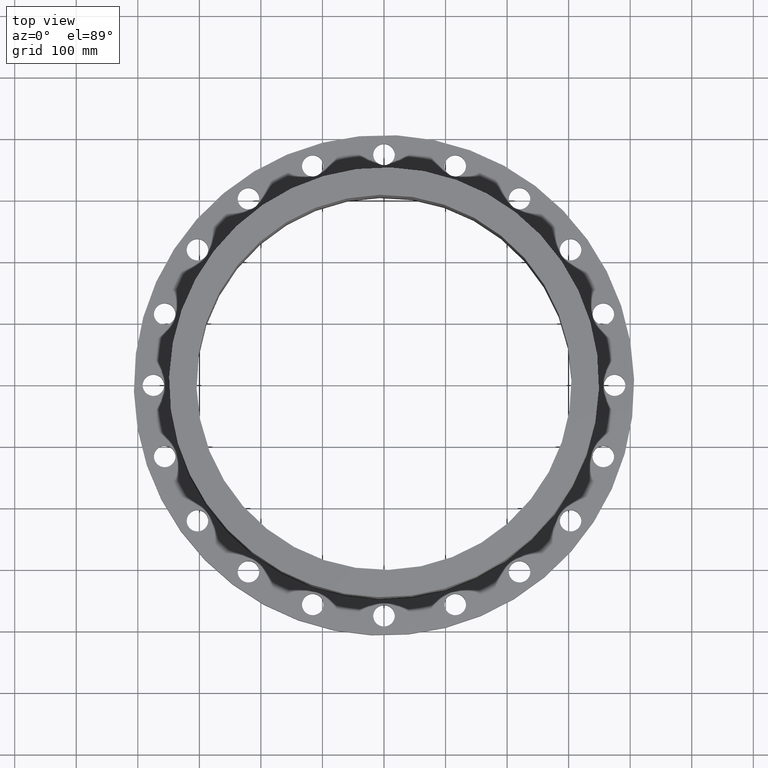
[diagram: clean part render]
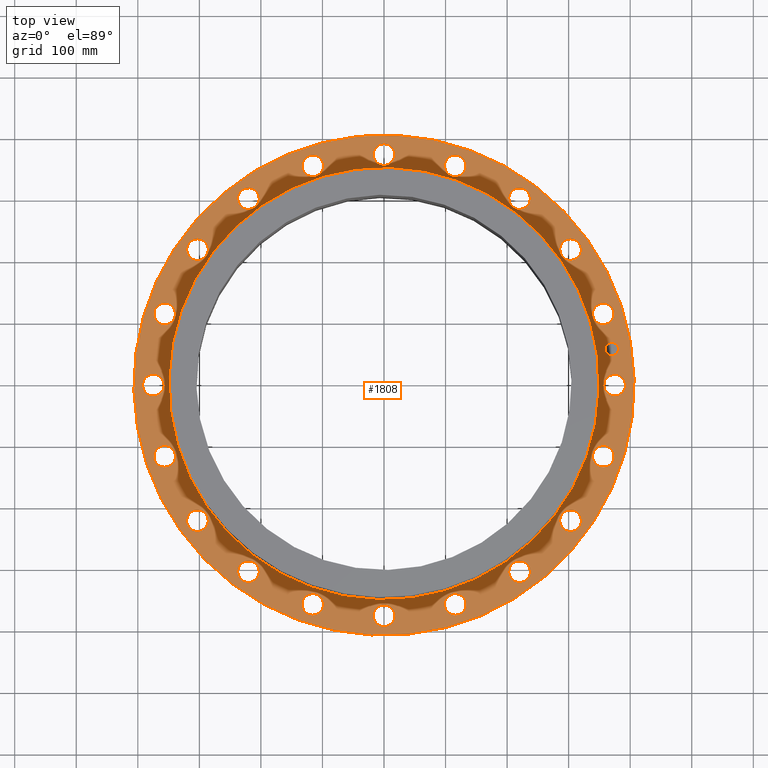
[diagram: same view with one face highlighted and labeled with its STEP entity id]
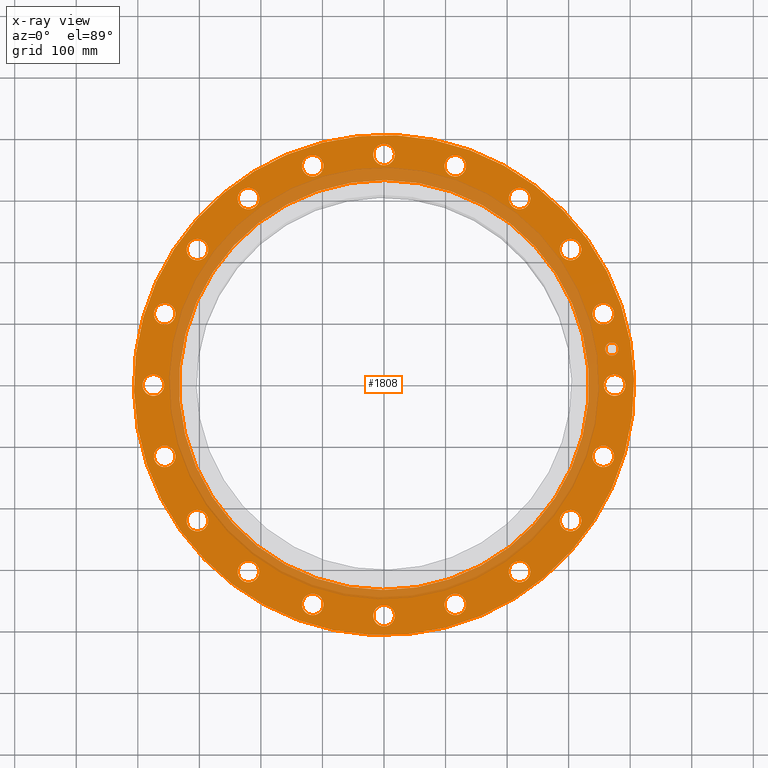
[diagram: x-ray of the same camera — body ghosted, the highlighted face saturated]
A machine part, top view. The second image highlights one B-rep face of the part: STEP entity #1808.
The next image is the same camera in x-ray: the body ghosted, the highlighted face saturated — about 24% of this face is hidden behind the body in this view.
In plain terms, the highlighted planar face has unit normal (0, 0, -1).
Its self-contained STEP definition (entity closure, byte-faithful):
#51=AXIS2_PLACEMENT_3D('Circle Axis2P3D',#49,#50,$) ;
#470=AXIS2_PLACEMENT_3D('Circle Axis2P3D',#468,#469,$) ;
#494=AXIS2_PLACEMENT_3D('Circle Axis2P3D',#492,#493,$) ;
#513=AXIS2_PLACEMENT_3D('Circle Axis2P3D',#511,#512,$) ;
#530=AXIS2_PLACEMENT_3D('Circle Axis2P3D',#528,#529,$) ;
#565=AXIS2_PLACEMENT_3D('Circle Axis2P3D',#563,#564,$) ;
#894=AXIS2_PLACEMENT_3D('Circle Axis2P3D',#892,#893,$) ;
#913=AXIS2_PLACEMENT_3D('Circle Axis2P3D',#911,#912,$) ;
#937=AXIS2_PLACEMENT_3D('Circle Axis2P3D',#935,#936,$) ;
#956=AXIS2_PLACEMENT_3D('Circle Axis2P3D',#954,#955,$) ;
#980=AXIS2_PLACEMENT_3D('Circle Axis2P3D',#978,#979,$) ;
#999=AXIS2_PLACEMENT_3D('Circle Axis2P3D',#997,#998,$) ;
#1023=AXIS2_PLACEMENT_3D('Circle Axis2P3D',#1021,#1022,$) ;
#1042=AXIS2_PLACEMENT_3D('Circle Axis2P3D',#1040,#1041,$) ;
#1066=AXIS2_PLACEMENT_3D('Circle Axis2P3D',#1064,#1065,$) ;
#1085=AXIS2_PLACEMENT_3D('Circle Axis2P3D',#1083,#1084,$) ;
#1109=AXIS2_PLACEMENT_3D('Circle Axis2P3D',#1107,#1108,$) ;
#1128=AXIS2_PLACEMENT_3D('Circle Axis2P3D',#1126,#1127,$) ;
#1152=AXIS2_PLACEMENT_3D('Circle Axis2P3D',#1150,#1151,$) ;
#1171=AXIS2_PLACEMENT_3D('Circle Axis2P3D',#1169,#1170,$) ;
#1195=AXIS2_PLACEMENT_3D('Circle Axis2P3D',#1193,#1194,$) ;
#1214=AXIS2_PLACEMENT_3D('Circle Axis2P3D',#1212,#1213,$) ;
#1238=AXIS2_PLACEMENT_3D('Circle Axis2P3D',#1236,#1237,$) ;
#1257=AXIS2_PLACEMENT_3D('Circle Axis2P3D',#1255,#1256,$) ;
#1281=AXIS2_PLACEMENT_3D('Circle Axis2P3D',#1279,#1280,$) ;
#1300=AXIS2_PLACEMENT_3D('Circle Axis2P3D',#1298,#1299,$) ;
#1324=AXIS2_PLACEMENT_3D('Circle Axis2P3D',#1322,#1323,$) ;
#1343=AXIS2_PLACEMENT_3D('Circle Axis2P3D',#1341,#1342,$) ;
#1367=AXIS2_PLACEMENT_3D('Circle Axis2P3D',#1365,#1366,$) ;
#1386=AXIS2_PLACEMENT_3D('Circle Axis2P3D',#1384,#1385,$) ;
#1410=AXIS2_PLACEMENT_3D('Circle Axis2P3D',#1408,#1409,$) ;
#1429=AXIS2_PLACEMENT_3D('Circle Axis2P3D',#1427,#1428,$) ;
#1453=AXIS2_PLACEMENT_3D('Circle Axis2P3D',#1451,#1452,$) ;
#1472=AXIS2_PLACEMENT_3D('Circle Axis2P3D',#1470,#1471,$) ;
#1496=AXIS2_PLACEMENT_3D('Circle Axis2P3D',#1494,#1495,$) ;
#1515=AXIS2_PLACEMENT_3D('Circle Axis2P3D',#1513,#1514,$) ;
#1539=AXIS2_PLACEMENT_3D('Circle Axis2P3D',#1537,#1538,$) ;
#1558=AXIS2_PLACEMENT_3D('Circle Axis2P3D',#1556,#1557,$) ;
#1582=AXIS2_PLACEMENT_3D('Circle Axis2P3D',#1580,#1581,$) ;
#1601=AXIS2_PLACEMENT_3D('Circle Axis2P3D',#1599,#1600,$) ;
#1625=AXIS2_PLACEMENT_3D('Circle Axis2P3D',#1623,#1624,$) ;
#1644=AXIS2_PLACEMENT_3D('Circle Axis2P3D',#1642,#1643,$) ;
#1668=AXIS2_PLACEMENT_3D('Circle Axis2P3D',#1666,#1667,$) ;
#1687=AXIS2_PLACEMENT_3D('Circle Axis2P3D',#1685,#1686,$) ;
#1700=AXIS2_PLACEMENT_3D('Plane Axis2P3D',#1697,#1698,#1699) ;
#1792=AXIS2_PLACEMENT_3D('Circle Axis2P3D',#1790,#1791,$) ;
#1801=AXIS2_PLACEMENT_3D('Circle Axis2P3D',#1799,#1800,$) ;
#44=CARTESIAN_POINT('Vertex',(14.1444680324,-0.330803621638,1.81750000001)) ;
#49=CARTESIAN_POINT('Axis2P3D Location',(14.7500000001,0.,1.81750000001)) ;
#53=CARTESIAN_POINT('Vertex',(15.3555319678,0.330803621638,1.81750000001)) ;
#468=CARTESIAN_POINT('Axis2P3D Location',(14.7500000001,0.,1.81750000001)) ;
#489=CARTESIAN_POINT('Vertex',(-7.6708086177,-14.0413209903,1.81750000001)) ;
#492=CARTESIAN_POINT('Axis2P3D Location',(0.,0.,1.81750000001)) ;
#496=CARTESIAN_POINT('Vertex',(7.6708086177,14.0413209903,1.81750000001)) ;
#511=CARTESIAN_POINT('Axis2P3D Location',(0.,0.,1.81750000001)) ;
#528=CARTESIAN_POINT('Axis2P3D Location',(0.,0.,1.81750000001)) ;
#532=CARTESIAN_POINT('Vertex',(6.28526881113,11.5051073864,1.81750000001)) ;
#534=CARTESIAN_POINT('Vertex',(-6.28526881113,-11.5051073864,1.81750000001)) ;
#563=CARTESIAN_POINT('Axis2P3D Location',(0.,0.,1.81750000001)) ;
#889=CARTESIAN_POINT('Vertex',(13.3499645508,-4.68549393836,1.81750000001)) ;
#892=CARTESIAN_POINT('Axis2P3D Location',(14.0280836154,-4.55800066705,1.81750000001)) ;
#896=CARTESIAN_POINT('Vertex',(14.70620268,-4.43050739573,1.81750000001)) ;
#911=CARTESIAN_POINT('Axis2P3D Location',(14.0280836154,-4.55800066705,1.81750000001)) ;
#932=CARTESIAN_POINT('Vertex',(11.2486735244,-8.58153546265,1.81750000001)) ;
#935=CARTESIAN_POINT('Axis2P3D Location',(11.9330006671,-8.66983247135,1.81750000001)) ;
#939=CARTESIAN_POINT('Vertex',(12.6173278098,-8.75812948005,1.81750000001)) ;
#954=CARTESIAN_POINT('Axis2P3D Location',(11.9330006671,-8.66983247135,1.81750000001)) ;
#975=CARTESIAN_POINT('Vertex',(8.04628395923,-11.6375565048,1.81750000001)) ;
#978=CARTESIAN_POINT('Axis2P3D Location',(8.66983247135,-11.9330006671,1.81750000001)) ;
#982=CARTESIAN_POINT('Vertex',(9.29338098346,-12.2284448294,1.81750000001)) ;
#997=CARTESIAN_POINT('Axis2P3D Location',(8.66983247135,-11.9330006671,1.81750000001)) ;
#1018=CARTESIAN_POINT('Vertex',(4.05626805842,-13.5544124326,1.81750000001)) ;
#1021=CARTESIAN_POINT('Axis2P3D Location',(4.55800066705,-14.0280836154,1.81750000001)) ;
#1025=CARTESIAN_POINT('Vertex',(5.05973327568,-14.5017547982,1.81750000001)) ;
#1040=CARTESIAN_POINT('Axis2P3D Location',(4.55800066705,-14.0280836154,1.81750000001)) ;
#1061=CARTESIAN_POINT('Vertex',(-0.330803621638,-14.1444680324,1.81750000001)) ;
#1064=CARTESIAN_POINT('Axis2P3D Location',(4.17833493703E-015,-14.7500000001,1.81750000001)) ;
#1068=CARTESIAN_POINT('Vertex',(0.330803621638,-15.3555319678,1.81750000001)) ;
#1083=CARTESIAN_POINT('Axis2P3D Location',(4.17833493703E-015,-14.7500000001,1.81750000001)) ;
#1104=CARTESIAN_POINT('Vertex',(-4.68549393836,-13.3499645508,1.81750000001)) ;
#1107=CARTESIAN_POINT('Axis2P3D Location',(-4.55800066705,-14.0280836154,1.81750000001)) ;
#1111=CARTESIAN_POINT('Vertex',(-4.43050739573,-14.70620268,1.81750000001)) ;
#1126=CARTESIAN_POINT('Axis2P3D Location',(-4.55800066705,-14.0280836154,1.81750000001)) ;
#1147=CARTESIAN_POINT('Vertex',(-8.58153546265,-11.2486735244,1.81750000001)) ;
#1150=CARTESIAN_POINT('Axis2P3D Location',(-8.66983247135,-11.9330006671,1.81750000001)) ;
#1154=CARTESIAN_POINT('Vertex',(-8.75812948005,-12.6173278098,1.81750000001)) ;
#1169=CARTESIAN_POINT('Axis2P3D Location',(-8.66983247135,-11.9330006671,1.81750000001)) ;
#1190=CARTESIAN_POINT('Vertex',(-11.6375565048,-8.04628395923,1.81750000001)) ;
#1193=CARTESIAN_POINT('Axis2P3D Location',(-11.9330006671,-8.66983247135,1.81750000001)) ;
#1197=CARTESIAN_POINT('Vertex',(-12.2284448294,-9.29338098346,1.81750000001)) ;
#1212=CARTESIAN_POINT('Axis2P3D Location',(-11.9330006671,-8.66983247135,1.81750000001)) ;
#1233=CARTESIAN_POINT('Vertex',(-13.5544124326,-4.05626805842,1.81750000001)) ;
#1236=CARTESIAN_POINT('Axis2P3D Location',(-14.0280836154,-4.55800066705,1.81750000001)) ;
#1240=CARTESIAN_POINT('Vertex',(-14.5017547982,-5.05973327568,1.81750000001)) ;
#1255=CARTESIAN_POINT('Axis2P3D Location',(-14.0280836154,-4.55800066705,1.81750000001)) ;
#1276=CARTESIAN_POINT('Vertex',(-14.1444680324,0.330803621638,1.81750000001)) ;
#1279=CARTESIAN_POINT('Axis2P3D Location',(-14.7500000001,-8.35666987406E-015,1.81750000001)) ;
#1283=CARTESIAN_POINT('Vertex',(-15.3555319678,-0.330803621638,1.81750000001)) ;
#1298=CARTESIAN_POINT('Axis2P3D Location',(-14.7500000001,-8.35666987406E-015,1.81750000001)) ;
#1319=CARTESIAN_POINT('Vertex',(-13.3499645508,4.68549393836,1.81750000001)) ;
#1322=CARTESIAN_POINT('Axis2P3D Location',(-14.0280836154,4.55800066705,1.81750000001)) ;
#1326=CARTESIAN_POINT('Vertex',(-14.70620268,4.43050739573,1.81750000001)) ;
#1341=CARTESIAN_POINT('Axis2P3D Location',(-14.0280836154,4.55800066705,1.81750000001)) ;
#1362=CARTESIAN_POINT('Vertex',(-11.2486735244,8.58153546265,1.81750000001)) ;
#1365=CARTESIAN_POINT('Axis2P3D Location',(-11.9330006671,8.66983247135,1.81750000001)) ;
#1369=CARTESIAN_POINT('Vertex',(-12.6173278098,8.75812948005,1.81750000001)) ;
#1384=CARTESIAN_POINT('Axis2P3D Location',(-11.9330006671,8.66983247135,1.81750000001)) ;
#1405=CARTESIAN_POINT('Vertex',(-8.04628395923,11.6375565048,1.81750000001)) ;
#1408=CARTESIAN_POINT('Axis2P3D Location',(-8.66983247135,11.9330006671,1.81750000001)) ;
#1412=CARTESIAN_POINT('Vertex',(-9.29338098346,12.2284448294,1.81750000001)) ;
#1427=CARTESIAN_POINT('Axis2P3D Location',(-8.66983247135,11.9330006671,1.81750000001)) ;
#1448=CARTESIAN_POINT('Vertex',(-4.05626805842,13.5544124326,1.81750000001)) ;
#1451=CARTESIAN_POINT('Axis2P3D Location',(-4.55800066705,14.0280836154,1.81750000001)) ;
#1455=CARTESIAN_POINT('Vertex',(-5.05973327568,14.5017547982,1.81750000001)) ;
#1470=CARTESIAN_POINT('Axis2P3D Location',(-4.55800066705,14.0280836154,1.81750000001)) ;
#1491=CARTESIAN_POINT('Vertex',(0.330803621638,14.1444680324,1.81750000001)) ;
#1494=CARTESIAN_POINT('Axis2P3D Location',(-1.58101627338E-014,14.7500000001,1.81750000001)) ;
#1498=CARTESIAN_POINT('Vertex',(-0.330803621638,15.3555319678,1.81750000001)) ;
#1513=CARTESIAN_POINT('Axis2P3D Location',(-1.58101627338E-014,14.7500000001,1.81750000001)) ;
#1534=CARTESIAN_POINT('Vertex',(4.68549393836,13.3499645508,1.81750000001)) ;
#1537=CARTESIAN_POINT('Axis2P3D Location',(4.55800066705,14.0280836154,1.81750000001)) ;
#1541=CARTESIAN_POINT('Vertex',(4.43050739573,14.70620268,1.81750000001)) ;
#1556=CARTESIAN_POINT('Axis2P3D Location',(4.55800066705,14.0280836154,1.81750000001)) ;
#1577=CARTESIAN_POINT('Vertex',(8.58153546265,11.2486735244,1.81750000001)) ;
#1580=CARTESIAN_POINT('Axis2P3D Location',(8.66983247135,11.9330006671,1.81750000001)) ;
#1584=CARTESIAN_POINT('Vertex',(8.75812948005,12.6173278098,1.81750000001)) ;
#1599=CARTESIAN_POINT('Axis2P3D Location',(8.66983247135,11.9330006671,1.81750000001)) ;
#1620=CARTESIAN_POINT('Vertex',(11.6375565048,8.04628395923,1.81750000001)) ;
#1623=CARTESIAN_POINT('Axis2P3D Location',(11.9330006671,8.66983247135,1.81750000001)) ;
#1627=CARTESIAN_POINT('Vertex',(12.2284448294,9.29338098346,1.81750000001)) ;
#1642=CARTESIAN_POINT('Axis2P3D Location',(11.9330006671,8.66983247135,1.81750000001)) ;
#1663=CARTESIAN_POINT('Vertex',(13.5544124326,4.05626805842,1.81750000001)) ;
#1666=CARTESIAN_POINT('Axis2P3D Location',(14.0280836154,4.55800066705,1.81750000001)) ;
#1670=CARTESIAN_POINT('Vertex',(14.5017547982,5.05973327568,1.81750000001)) ;
#1685=CARTESIAN_POINT('Axis2P3D Location',(14.0280836154,4.55800066705,1.81750000001)) ;
#1697=CARTESIAN_POINT('Axis2P3D Location',(0.,16.0000000001,1.81750000001)) ;
#1790=CARTESIAN_POINT('Axis2P3D Location',(14.5684030238,2.30740835935,1.81750000001)) ;
#1794=CARTESIAN_POINT('Vertex',(14.6348876708,1.8876408188,1.81750000001)) ;
#1796=CARTESIAN_POINT('Vertex',(14.5019183769,2.72717589991,1.81750000001)) ;
#1799=CARTESIAN_POINT('Axis2P3D Location',(14.5684030238,2.30740835935,1.81750000001)) ;
#50=DIRECTION('Axis2P3D Direction',(0.,-0.,0.0393700787402)) ;
#469=DIRECTION('Axis2P3D Direction',(0.,-0.,0.0393700787402)) ;
#493=DIRECTION('Axis2P3D Direction',(0.,0.,-0.0393700787402)) ;
#512=DIRECTION('Axis2P3D Direction',(0.,0.,-0.0393700787402)) ;
#529=DIRECTION('Axis2P3D Direction',(0.,0.,-0.0393700787402)) ;
#564=DIRECTION('Axis2P3D Direction',(0.,0.,-0.0393700787402)) ;
#893=DIRECTION('Axis2P3D Direction',(-0.,0.,0.0393700787402)) ;
#912=DIRECTION('Axis2P3D Direction',(-0.,0.,0.0393700787402)) ;
#936=DIRECTION('Axis2P3D Direction',(-0.,0.,0.0393700787402)) ;
#955=DIRECTION('Axis2P3D Direction',(-0.,0.,0.0393700787402)) ;
#979=DIRECTION('Axis2P3D Direction',(-0.,0.,0.0393700787402)) ;
#998=DIRECTION('Axis2P3D Direction',(-0.,0.,0.0393700787402)) ;
#1022=DIRECTION('Axis2P3D Direction',(-0.,0.,0.0393700787402)) ;
#1041=DIRECTION('Axis2P3D Direction',(-0.,0.,0.0393700787402)) ;
#1065=DIRECTION('Axis2P3D Direction',(-0.,0.,0.0393700787402)) ;
#1084=DIRECTION('Axis2P3D Direction',(-0.,0.,0.0393700787402)) ;
#1108=DIRECTION('Axis2P3D Direction',(0.,0.,0.0393700787402)) ;
#1127=DIRECTION('Axis2P3D Direction',(0.,0.,0.0393700787402)) ;
#1151=DIRECTION('Axis2P3D Direction',(0.,0.,0.0393700787402)) ;
#1170=DIRECTION('Axis2P3D Direction',(0.,0.,0.0393700787402)) ;
#1194=DIRECTION('Axis2P3D Direction',(0.,0.,0.0393700787402)) ;
#1213=DIRECTION('Axis2P3D Direction',(0.,0.,0.0393700787402)) ;
#1237=DIRECTION('Axis2P3D Direction',(0.,0.,0.0393700787402)) ;
#1256=DIRECTION('Axis2P3D Direction',(0.,0.,0.0393700787402)) ;
#1280=DIRECTION('Axis2P3D Direction',(0.,0.,0.0393700787402)) ;
#1299=DIRECTION('Axis2P3D Direction',(0.,0.,0.0393700787402)) ;
#1323=DIRECTION('Axis2P3D Direction',(0.,0.,0.0393700787402)) ;
#1342=DIRECTION('Axis2P3D Direction',(0.,0.,0.0393700787402)) ;
#1366=DIRECTION('Axis2P3D Direction',(0.,0.,0.0393700787402)) ;
#1385=DIRECTION('Axis2P3D Direction',(0.,0.,0.0393700787402)) ;
#1409=DIRECTION('Axis2P3D Direction',(0.,0.,0.0393700787402)) ;
#1428=DIRECTION('Axis2P3D Direction',(0.,0.,0.0393700787402)) ;
#1452=DIRECTION('Axis2P3D Direction',(0.,0.,0.0393700787402)) ;
#1471=DIRECTION('Axis2P3D Direction',(0.,0.,0.0393700787402)) ;
#1495=DIRECTION('Axis2P3D Direction',(0.,0.,0.0393700787402)) ;
#1514=DIRECTION('Axis2P3D Direction',(0.,0.,0.0393700787402)) ;
#1538=DIRECTION('Axis2P3D Direction',(0.,-0.,0.0393700787402)) ;
#1557=DIRECTION('Axis2P3D Direction',(0.,-0.,0.0393700787402)) ;
#1581=DIRECTION('Axis2P3D Direction',(0.,-0.,0.0393700787402)) ;
#1600=DIRECTION('Axis2P3D Direction',(0.,-0.,0.0393700787402)) ;
#1624=DIRECTION('Axis2P3D Direction',(0.,-0.,0.0393700787402)) ;
#1643=DIRECTION('Axis2P3D Direction',(0.,-0.,0.0393700787402)) ;
#1667=DIRECTION('Axis2P3D Direction',(0.,-0.,0.0393700787402)) ;
#1686=DIRECTION('Axis2P3D Direction',(0.,-0.,0.0393700787402)) ;
#1698=DIRECTION('Axis2P3D Direction',(0.,0.,-0.0393700787402)) ;
#1699=DIRECTION('Axis2P3D XDirection',(0.0393700787402,0.,0.)) ;
#1791=DIRECTION('Axis2P3D Direction',(0.,0.,-0.0393700787402)) ;
#1800=DIRECTION('Axis2P3D Direction',(0.,0.,-0.0393700787402)) ;
#1703=ORIENTED_EDGE('',*,*,#515,.F.) ;
#1704=ORIENTED_EDGE('',*,*,#498,.F.) ;
#1707=ORIENTED_EDGE('',*,*,#55,.T.) ;
#1708=ORIENTED_EDGE('',*,*,#472,.T.) ;
#1711=ORIENTED_EDGE('',*,*,#567,.T.) ;
#1712=ORIENTED_EDGE('',*,*,#536,.T.) ;
#1715=ORIENTED_EDGE('',*,*,#915,.T.) ;
#1716=ORIENTED_EDGE('',*,*,#898,.T.) ;
#1719=ORIENTED_EDGE('',*,*,#958,.T.) ;
#1720=ORIENTED_EDGE('',*,*,#941,.T.) ;
#1723=ORIENTED_EDGE('',*,*,#1001,.T.) ;
#1724=ORIENTED_EDGE('',*,*,#984,.T.) ;
#1727=ORIENTED_EDGE('',*,*,#1044,.T.) ;
#1728=ORIENTED_EDGE('',*,*,#1027,.T.) ;
#1731=ORIENTED_EDGE('',*,*,#1087,.T.) ;
#1732=ORIENTED_EDGE('',*,*,#1070,.T.) ;
#1735=ORIENTED_EDGE('',*,*,#1130,.T.) ;
#1736=ORIENTED_EDGE('',*,*,#1113,.T.) ;
#1739=ORIENTED_EDGE('',*,*,#1173,.T.) ;
#1740=ORIENTED_EDGE('',*,*,#1156,.T.) ;
#1743=ORIENTED_EDGE('',*,*,#1216,.T.) ;
#1744=ORIENTED_EDGE('',*,*,#1199,.T.) ;
#1747=ORIENTED_EDGE('',*,*,#1259,.T.) ;
#1748=ORIENTED_EDGE('',*,*,#1242,.T.) ;
#1751=ORIENTED_EDGE('',*,*,#1302,.T.) ;
#1752=ORIENTED_EDGE('',*,*,#1285,.T.) ;
#1755=ORIENTED_EDGE('',*,*,#1345,.T.) ;
#1756=ORIENTED_EDGE('',*,*,#1328,.T.) ;
#1759=ORIENTED_EDGE('',*,*,#1388,.T.) ;
#1760=ORIENTED_EDGE('',*,*,#1371,.T.) ;
#1763=ORIENTED_EDGE('',*,*,#1431,.T.) ;
#1764=ORIENTED_EDGE('',*,*,#1414,.T.) ;
#1767=ORIENTED_EDGE('',*,*,#1474,.T.) ;
#1768=ORIENTED_EDGE('',*,*,#1457,.T.) ;
#1771=ORIENTED_EDGE('',*,*,#1517,.T.) ;
#1772=ORIENTED_EDGE('',*,*,#1500,.T.) ;
#1775=ORIENTED_EDGE('',*,*,#1560,.T.) ;
#1776=ORIENTED_EDGE('',*,*,#1543,.T.) ;
#1779=ORIENTED_EDGE('',*,*,#1603,.T.) ;
#1780=ORIENTED_EDGE('',*,*,#1586,.T.) ;
#1783=ORIENTED_EDGE('',*,*,#1646,.T.) ;
#1784=ORIENTED_EDGE('',*,*,#1629,.T.) ;
#1787=ORIENTED_EDGE('',*,*,#1689,.T.) ;
#1788=ORIENTED_EDGE('',*,*,#1672,.T.) ;
#1805=ORIENTED_EDGE('',*,*,#1798,.F.) ;
#1806=ORIENTED_EDGE('',*,*,#1803,.F.) ;
#1709=FACE_BOUND('',#1706,.T.) ;
#1713=FACE_BOUND('',#1710,.T.) ;
#1717=FACE_BOUND('',#1714,.T.) ;
#1721=FACE_BOUND('',#1718,.T.) ;
#1725=FACE_BOUND('',#1722,.T.) ;
#1729=FACE_BOUND('',#1726,.T.) ;
#1733=FACE_BOUND('',#1730,.T.) ;
#1737=FACE_BOUND('',#1734,.T.) ;
#1741=FACE_BOUND('',#1738,.T.) ;
#1745=FACE_BOUND('',#1742,.T.) ;
#1749=FACE_BOUND('',#1746,.T.) ;
#1753=FACE_BOUND('',#1750,.T.) ;
#1757=FACE_BOUND('',#1754,.T.) ;
#1761=FACE_BOUND('',#1758,.T.) ;
#1765=FACE_BOUND('',#1762,.T.) ;
#1769=FACE_BOUND('',#1766,.T.) ;
#1773=FACE_BOUND('',#1770,.T.) ;
#1777=FACE_BOUND('',#1774,.T.) ;
#1781=FACE_BOUND('',#1778,.T.) ;
#1785=FACE_BOUND('',#1782,.T.) ;
#1789=FACE_BOUND('',#1786,.T.) ;
#1807=FACE_BOUND('',#1804,.T.) ;
#1808=ADVANCED_FACE('PartBody',(#1705,#1709,#1713,#1717,#1721,#1725,#1729,#1733,#1737,#1741,#1745,#1749,#1753,#1757,#1761,#1765,#1769,#1773,#1777,#1781,#1785,#1789,#1807),#1701,.F.) ;
#52=CIRCLE('generated circle',#51,0.690000000003) ;
#471=CIRCLE('generated circle',#470,0.690000000003) ;
#495=CIRCLE('generated circle',#494,16.0000000001) ;
#514=CIRCLE('generated circle',#513,16.0000000001) ;
#531=CIRCLE('generated circle',#530,13.1100000001) ;
#566=CIRCLE('generated circle',#565,13.1100000001) ;
#895=CIRCLE('generated circle',#894,0.690000000003) ;
#914=CIRCLE('generated circle',#913,0.690000000003) ;
#938=CIRCLE('generated circle',#937,0.690000000003) ;
#957=CIRCLE('generated circle',#956,0.690000000003) ;
#981=CIRCLE('generated circle',#980,0.690000000003) ;
#1000=CIRCLE('generated circle',#999,0.690000000003) ;
#1024=CIRCLE('generated circle',#1023,0.690000000003) ;
#1043=CIRCLE('generated circle',#1042,0.690000000003) ;
#1067=CIRCLE('generated circle',#1066,0.690000000003) ;
#1086=CIRCLE('generated circle',#1085,0.690000000003) ;
#1110=CIRCLE('generated circle',#1109,0.690000000003) ;
#1129=CIRCLE('generated circle',#1128,0.690000000003) ;
#1153=CIRCLE('generated circle',#1152,0.690000000003) ;
#1172=CIRCLE('generated circle',#1171,0.690000000003) ;
#1196=CIRCLE('generated circle',#1195,0.690000000003) ;
#1215=CIRCLE('generated circle',#1214,0.690000000003) ;
#1239=CIRCLE('generated circle',#1238,0.690000000003) ;
#1258=CIRCLE('generated circle',#1257,0.690000000003) ;
#1282=CIRCLE('generated circle',#1281,0.690000000003) ;
#1301=CIRCLE('generated circle',#1300,0.690000000003) ;
#1325=CIRCLE('generated circle',#1324,0.690000000003) ;
#1344=CIRCLE('generated circle',#1343,0.690000000003) ;
#1368=CIRCLE('generated circle',#1367,0.690000000003) ;
#1387=CIRCLE('generated circle',#1386,0.690000000003) ;
#1411=CIRCLE('generated circle',#1410,0.690000000003) ;
#1430=CIRCLE('generated circle',#1429,0.690000000003) ;
#1454=CIRCLE('generated circle',#1453,0.690000000003) ;
#1473=CIRCLE('generated circle',#1472,0.690000000003) ;
#1497=CIRCLE('generated circle',#1496,0.690000000003) ;
#1516=CIRCLE('generated circle',#1515,0.690000000003) ;
#1540=CIRCLE('generated circle',#1539,0.690000000003) ;
#1559=CIRCLE('generated circle',#1558,0.690000000003) ;
#1583=CIRCLE('generated circle',#1582,0.690000000003) ;
#1602=CIRCLE('generated circle',#1601,0.690000000003) ;
#1626=CIRCLE('generated circle',#1625,0.690000000003) ;
#1645=CIRCLE('generated circle',#1644,0.690000000003) ;
#1669=CIRCLE('generated circle',#1668,0.690000000003) ;
#1688=CIRCLE('generated circle',#1687,0.690000000003) ;
#1793=CIRCLE('generated circle',#1792,0.424999995752) ;
#1802=CIRCLE('generated circle',#1801,0.424999995752) ;
#55=EDGE_CURVE('',#54,#45,#52,.F.) ;
#472=EDGE_CURVE('',#45,#54,#471,.F.) ;
#498=EDGE_CURVE('',#490,#497,#495,.T.) ;
#515=EDGE_CURVE('',#497,#490,#514,.T.) ;
#536=EDGE_CURVE('',#533,#535,#531,.T.) ;
#567=EDGE_CURVE('',#535,#533,#566,.T.) ;
#898=EDGE_CURVE('',#897,#890,#895,.F.) ;
#915=EDGE_CURVE('',#890,#897,#914,.F.) ;
#941=EDGE_CURVE('',#940,#933,#938,.F.) ;
#958=EDGE_CURVE('',#933,#940,#957,.F.) ;
#984=EDGE_CURVE('',#983,#976,#981,.F.) ;
#1001=EDGE_CURVE('',#976,#983,#1000,.F.) ;
#1027=EDGE_CURVE('',#1026,#1019,#1024,.F.) ;
#1044=EDGE_CURVE('',#1019,#1026,#1043,.F.) ;
#1070=EDGE_CURVE('',#1069,#1062,#1067,.F.) ;
#1087=EDGE_CURVE('',#1062,#1069,#1086,.F.) ;
#1113=EDGE_CURVE('',#1112,#1105,#1110,.F.) ;
#1130=EDGE_CURVE('',#1105,#1112,#1129,.F.) ;
#1156=EDGE_CURVE('',#1155,#1148,#1153,.F.) ;
#1173=EDGE_CURVE('',#1148,#1155,#1172,.F.) ;
#1199=EDGE_CURVE('',#1198,#1191,#1196,.F.) ;
#1216=EDGE_CURVE('',#1191,#1198,#1215,.F.) ;
#1242=EDGE_CURVE('',#1241,#1234,#1239,.F.) ;
#1259=EDGE_CURVE('',#1234,#1241,#1258,.F.) ;
#1285=EDGE_CURVE('',#1284,#1277,#1282,.F.) ;
#1302=EDGE_CURVE('',#1277,#1284,#1301,.F.) ;
#1328=EDGE_CURVE('',#1327,#1320,#1325,.F.) ;
#1345=EDGE_CURVE('',#1320,#1327,#1344,.F.) ;
#1371=EDGE_CURVE('',#1370,#1363,#1368,.F.) ;
#1388=EDGE_CURVE('',#1363,#1370,#1387,.F.) ;
#1414=EDGE_CURVE('',#1413,#1406,#1411,.F.) ;
#1431=EDGE_CURVE('',#1406,#1413,#1430,.F.) ;
#1457=EDGE_CURVE('',#1456,#1449,#1454,.F.) ;
#1474=EDGE_CURVE('',#1449,#1456,#1473,.F.) ;
#1500=EDGE_CURVE('',#1499,#1492,#1497,.F.) ;
#1517=EDGE_CURVE('',#1492,#1499,#1516,.F.) ;
#1543=EDGE_CURVE('',#1542,#1535,#1540,.F.) ;
#1560=EDGE_CURVE('',#1535,#1542,#1559,.F.) ;
#1586=EDGE_CURVE('',#1585,#1578,#1583,.F.) ;
#1603=EDGE_CURVE('',#1578,#1585,#1602,.F.) ;
#1629=EDGE_CURVE('',#1628,#1621,#1626,.F.) ;
#1646=EDGE_CURVE('',#1621,#1628,#1645,.F.) ;
#1672=EDGE_CURVE('',#1671,#1664,#1669,.F.) ;
#1689=EDGE_CURVE('',#1664,#1671,#1688,.F.) ;
#1798=EDGE_CURVE('',#1795,#1797,#1793,.F.) ;
#1803=EDGE_CURVE('',#1797,#1795,#1802,.F.) ;
#1702=EDGE_LOOP('',(#1703,#1704)) ;
#1706=EDGE_LOOP('',(#1707,#1708)) ;
#1710=EDGE_LOOP('',(#1711,#1712)) ;
#1714=EDGE_LOOP('',(#1715,#1716)) ;
#1718=EDGE_LOOP('',(#1719,#1720)) ;
#1722=EDGE_LOOP('',(#1723,#1724)) ;
#1726=EDGE_LOOP('',(#1727,#1728)) ;
#1730=EDGE_LOOP('',(#1731,#1732)) ;
#1734=EDGE_LOOP('',(#1735,#1736)) ;
#1738=EDGE_LOOP('',(#1739,#1740)) ;
#1742=EDGE_LOOP('',(#1743,#1744)) ;
#1746=EDGE_LOOP('',(#1747,#1748)) ;
#1750=EDGE_LOOP('',(#1751,#1752)) ;
#1754=EDGE_LOOP('',(#1755,#1756)) ;
#1758=EDGE_LOOP('',(#1759,#1760)) ;
#1762=EDGE_LOOP('',(#1763,#1764)) ;
#1766=EDGE_LOOP('',(#1767,#1768)) ;
#1770=EDGE_LOOP('',(#1771,#1772)) ;
#1774=EDGE_LOOP('',(#1775,#1776)) ;
#1778=EDGE_LOOP('',(#1779,#1780)) ;
#1782=EDGE_LOOP('',(#1783,#1784)) ;
#1786=EDGE_LOOP('',(#1787,#1788)) ;
#1804=EDGE_LOOP('',(#1805,#1806)) ;
#1705=FACE_OUTER_BOUND('',#1702,.T.) ;
#1701=PLANE('',#1700) ;
#45=VERTEX_POINT('',#44) ;
#54=VERTEX_POINT('',#53) ;
#490=VERTEX_POINT('',#489) ;
#497=VERTEX_POINT('',#496) ;
#533=VERTEX_POINT('',#532) ;
#535=VERTEX_POINT('',#534) ;
#890=VERTEX_POINT('',#889) ;
#897=VERTEX_POINT('',#896) ;
#933=VERTEX_POINT('',#932) ;
#940=VERTEX_POINT('',#939) ;
#976=VERTEX_POINT('',#975) ;
#983=VERTEX_POINT('',#982) ;
#1019=VERTEX_POINT('',#1018) ;
#1026=VERTEX_POINT('',#1025) ;
#1062=VERTEX_POINT('',#1061) ;
#1069=VERTEX_POINT('',#1068) ;
#1105=VERTEX_POINT('',#1104) ;
#1112=VERTEX_POINT('',#1111) ;
#1148=VERTEX_POINT('',#1147) ;
#1155=VERTEX_POINT('',#1154) ;
#1191=VERTEX_POINT('',#1190) ;
#1198=VERTEX_POINT('',#1197) ;
#1234=VERTEX_POINT('',#1233) ;
#1241=VERTEX_POINT('',#1240) ;
#1277=VERTEX_POINT('',#1276) ;
#1284=VERTEX_POINT('',#1283) ;
#1320=VERTEX_POINT('',#1319) ;
#1327=VERTEX_POINT('',#1326) ;
#1363=VERTEX_POINT('',#1362) ;
#1370=VERTEX_POINT('',#1369) ;
#1406=VERTEX_POINT('',#1405) ;
#1413=VERTEX_POINT('',#1412) ;
#1449=VERTEX_POINT('',#1448) ;
#1456=VERTEX_POINT('',#1455) ;
#1492=VERTEX_POINT('',#1491) ;
#1499=VERTEX_POINT('',#1498) ;
#1535=VERTEX_POINT('',#1534) ;
#1542=VERTEX_POINT('',#1541) ;
#1578=VERTEX_POINT('',#1577) ;
#1585=VERTEX_POINT('',#1584) ;
#1621=VERTEX_POINT('',#1620) ;
#1628=VERTEX_POINT('',#1627) ;
#1664=VERTEX_POINT('',#1663) ;
#1671=VERTEX_POINT('',#1670) ;
#1795=VERTEX_POINT('',#1794) ;
#1797=VERTEX_POINT('',#1796) ;